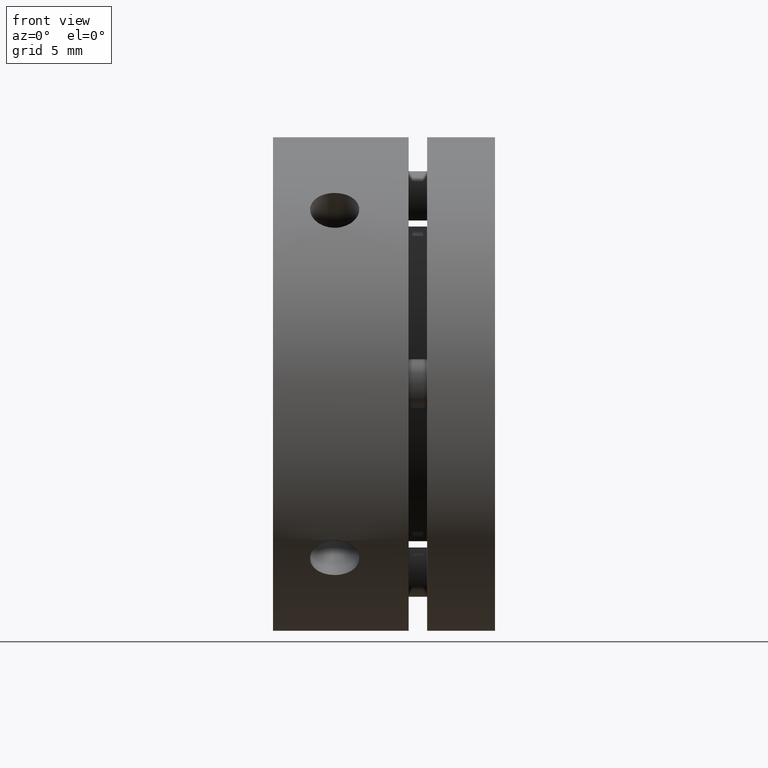
[diagram: clean part render]
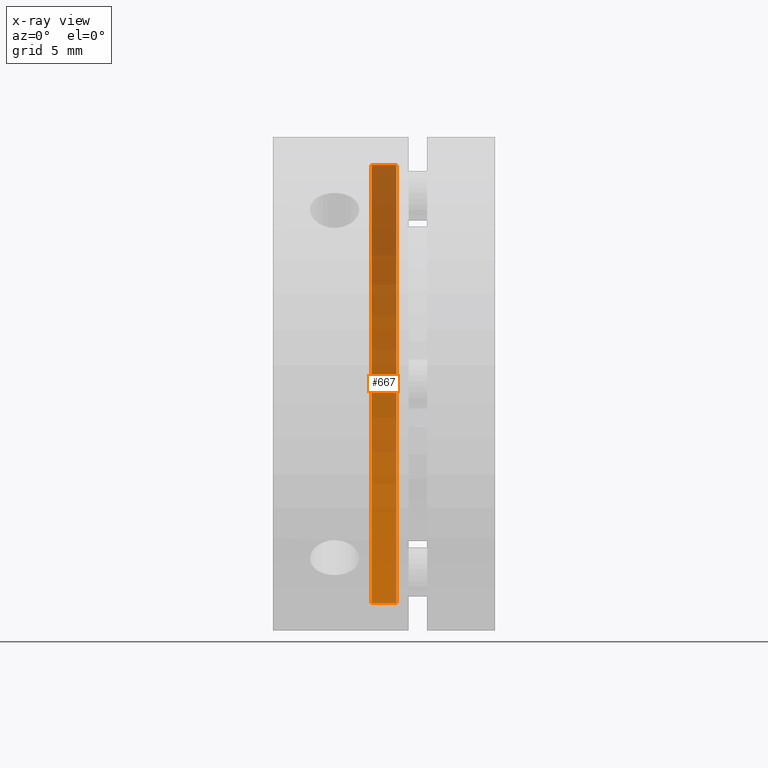
[diagram: x-ray — body ghosted, one internal face saturated and labeled with its STEP entity id]
A machine part, front view, then the same camera in x-ray: the body is ghosted and one INTERNAL B-rep face — a face not visible from any outside direction — is saturated and labeled: STEP entity #667.
In plain terms, the highlighted cylindrical surface (partial cylindrical patch) has radius 17.75 mm, axis along (-1, 0, 0).
Its self-contained STEP definition (entity closure, byte-faithful):
#95 = ORIENTED_EDGE ( 'NONE', *, *, #2707, .T. ) ;
#100 = ORIENTED_EDGE ( 'NONE', *, *, #2706, .T. ) ;
#102 = ORIENTED_EDGE ( 'NONE', *, *, #2678, .T. ) ;
#105 = ORIENTED_EDGE ( 'NONE', *, *, #2687, .F. ) ;
#332 = EDGE_LOOP ( 'NONE', ( #105, #95, #102, #100 ) ) ;
#667 = ADVANCED_FACE ( 'NONE', ( #1043 ), #1049, .F. ) ;
#939 = CARTESIAN_POINT ( 'NONE',  ( 9.000000000000014200, 2.173748068486552000E-015, -17.75000000000000400 ) ) ;
#943 = DIRECTION ( 'NONE',  ( -1.000000000000000000, 0.0000000000000000000, 0.0000000000000000000 ) ) ;
#967 = CARTESIAN_POINT ( 'NONE',  ( 9.000000000000014200, 0.0000000000000000000, 17.75000000000000400 ) ) ;
#974 = DIRECTION ( 'NONE',  ( -1.000000000000000000, 0.0000000000000000000, 0.0000000000000000000 ) ) ;
#1043 = FACE_OUTER_BOUND ( 'NONE', #332, .T. ) ;
#1049 = CYLINDRICAL_SURFACE ( 'NONE', #2436, 17.75000000000000400 ) ;
#1343 = VERTEX_POINT ( 'NONE', #1930 ) ;
#1450 = VERTEX_POINT ( 'NONE', #1884 ) ;
#1451 = VERTEX_POINT ( 'NONE', #1889 ) ;
#1458 = VERTEX_POINT ( 'NONE', #1878 ) ;
#1616 = CARTESIAN_POINT ( 'NONE',  ( 8.000000000000021300, 0.0000000000000000000, 0.0000000000000000000 ) ) ;
#1617 = DIRECTION ( 'NONE',  ( 0.0000000000000000000, 0.0000000000000000000, 1.000000000000000000 ) ) ;
#1618 = DIRECTION ( 'NONE',  ( -1.000000000000000000, 0.0000000000000000000, 0.0000000000000000000 ) ) ;
#1619 = CARTESIAN_POINT ( 'NONE',  ( 10.00000000000000900, 0.0000000000000000000, 0.0000000000000000000 ) ) ;
#1620 = DIRECTION ( 'NONE',  ( 0.0000000000000000000, 0.0000000000000000000, 1.000000000000000000 ) ) ;
#1621 = DIRECTION ( 'NONE',  ( 1.000000000000000000, -0.0000000000000000000, -0.0000000000000000000 ) ) ;
#1878 = CARTESIAN_POINT ( 'NONE',  ( 10.00000000000000900, 0.0000000000000000000, 17.75000000000000400 ) ) ;
#1884 = CARTESIAN_POINT ( 'NONE',  ( 8.000000000000021300, 0.0000000000000000000, 17.75000000000000400 ) ) ;
#1889 = CARTESIAN_POINT ( 'NONE',  ( 8.000000000000021300, 2.173748068486552000E-015, -17.75000000000000400 ) ) ;
#1930 = CARTESIAN_POINT ( 'NONE',  ( 10.00000000000000900, 2.173748068486552000E-015, -17.75000000000000400 ) ) ;
#2036 = CARTESIAN_POINT ( 'NONE',  ( 9.000000000000014200, 0.0000000000000000000, 0.0000000000000000000 ) ) ;
#2037 = DIRECTION ( 'NONE',  ( -1.000000000000000000, 0.0000000000000000000, 0.0000000000000000000 ) ) ;
#2041 = DIRECTION ( 'NONE',  ( 0.0000000000000000000, 0.0000000000000000000, 1.000000000000000000 ) ) ;
#2249 = AXIS2_PLACEMENT_3D ( 'NONE', #1616, #1618, #1617 ) ;
#2250 = AXIS2_PLACEMENT_3D ( 'NONE', #1619, #1621, #1620 ) ;
#2436 = AXIS2_PLACEMENT_3D ( 'NONE', #2036, #2037, #2041 ) ;
#2678 = EDGE_CURVE ( 'NONE', #1458, #1450, #2914, .T. ) ;
#2687 = EDGE_CURVE ( 'NONE', #1343, #1451, #2930, .T. ) ;
#2706 = EDGE_CURVE ( 'NONE', #1450, #1451, #2958, .T. ) ;
#2707 = EDGE_CURVE ( 'NONE', #1343, #1458, #2960, .T. ) ;
#2914 = LINE ( 'NONE', #967, #2917 ) ;
#2917 = VECTOR ( 'NONE', #974, 1000.000000000000000 ) ;
#2930 = LINE ( 'NONE', #939, #2933 ) ;
#2933 = VECTOR ( 'NONE', #943, 1000.000000000000000 ) ;
#2958 = CIRCLE ( 'NONE', #2249, 17.75000000000000400 ) ;
#2960 = CIRCLE ( 'NONE', #2250, 17.75000000000000400 ) ;